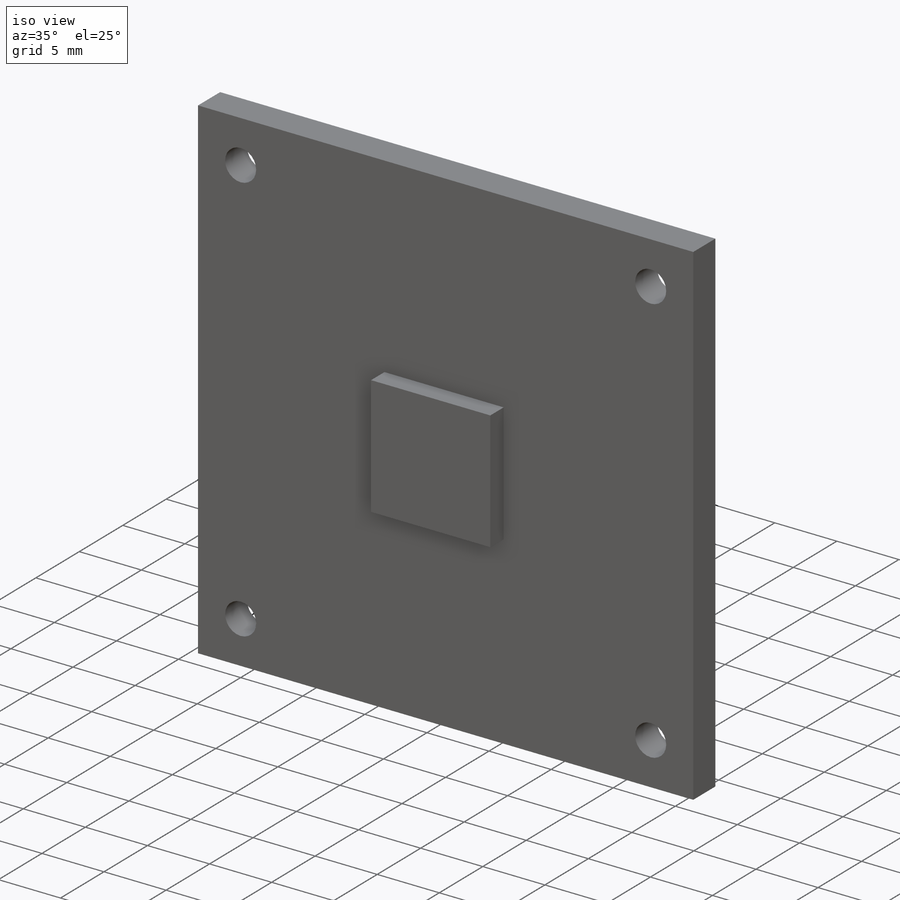
[diagram: iso view]
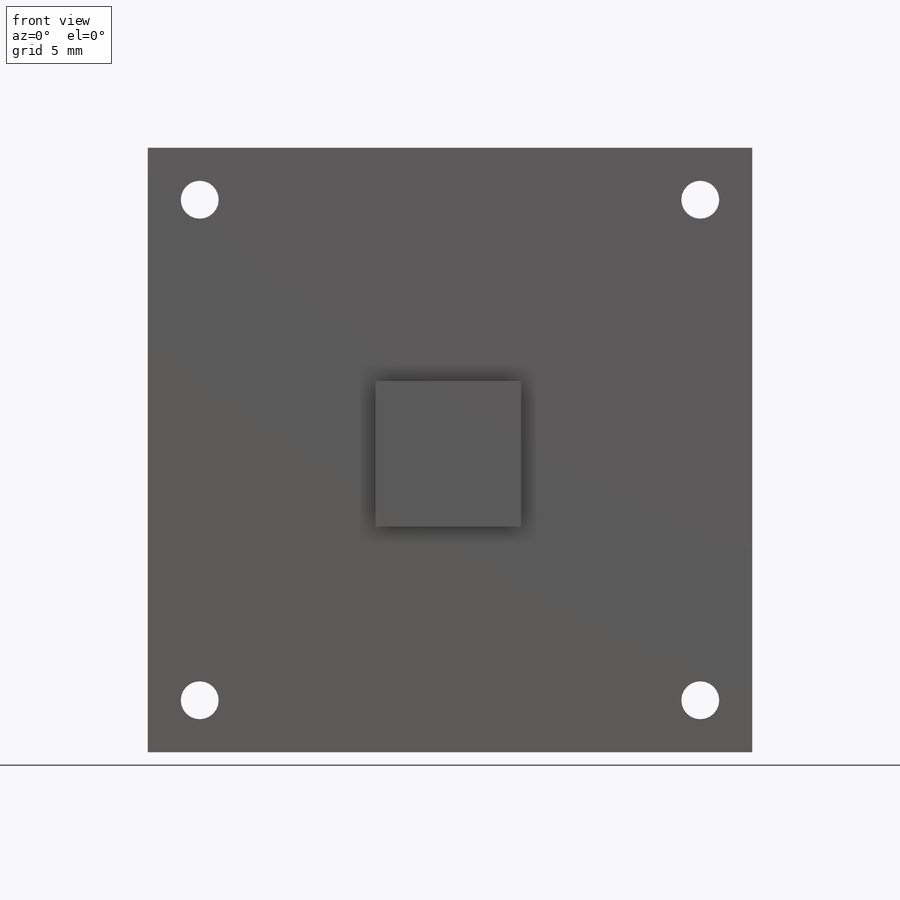
[diagram: front view]
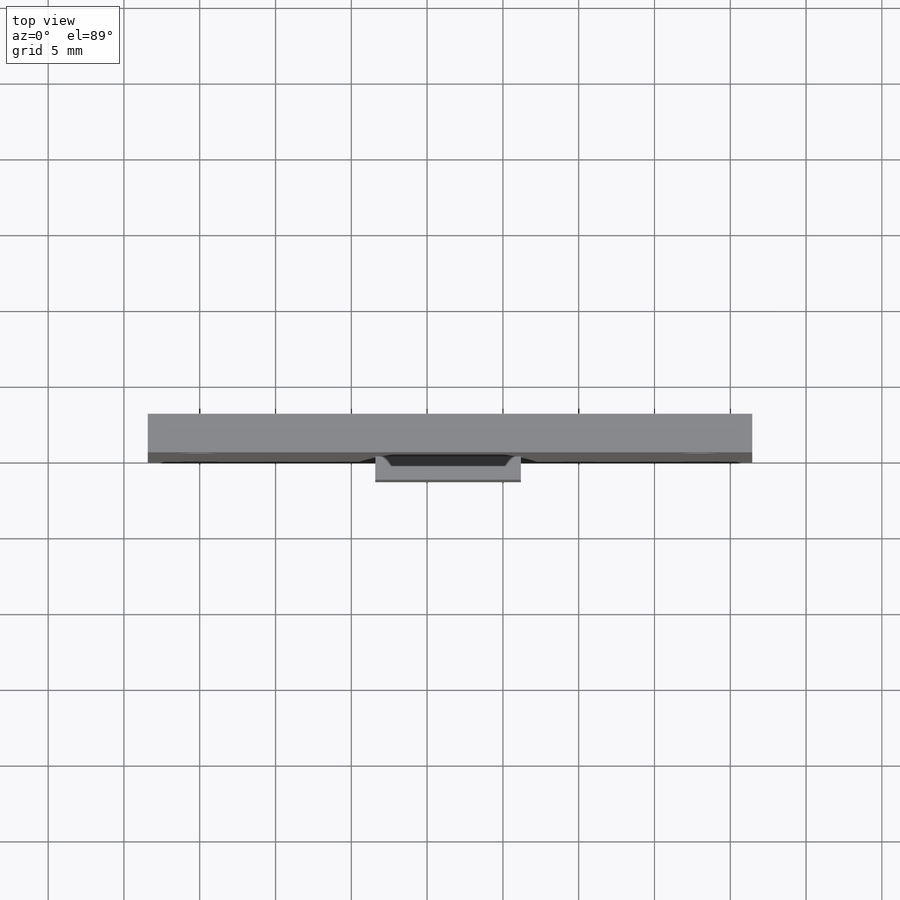
[diagram: top view]
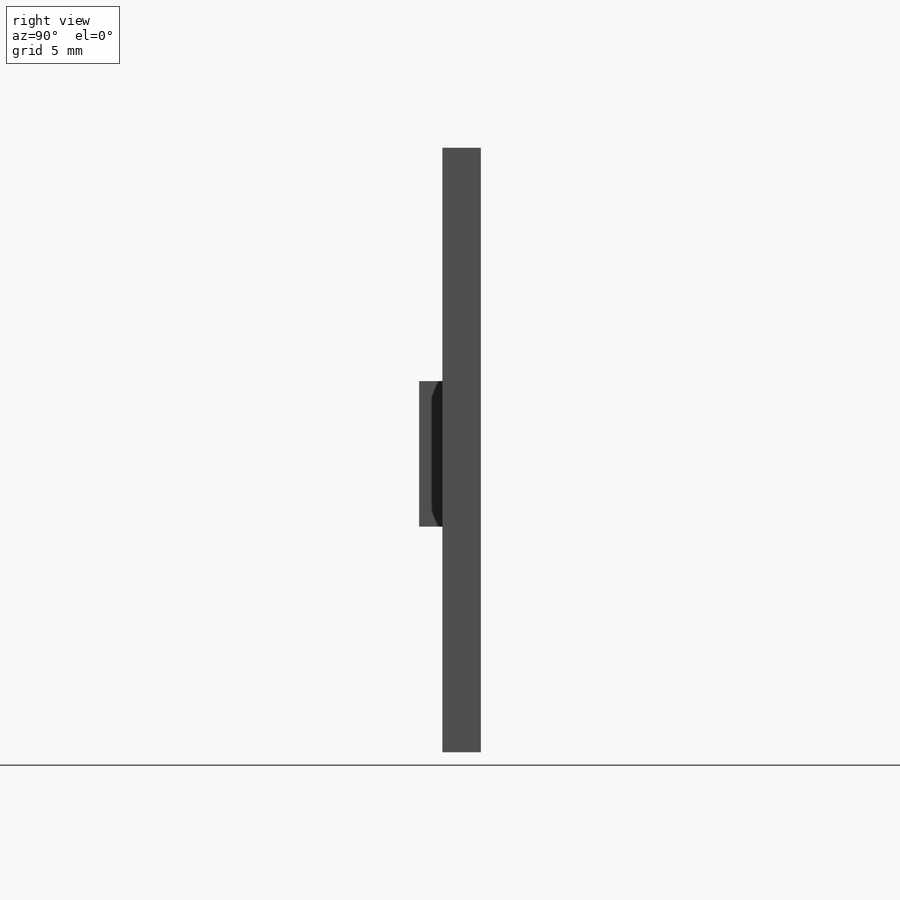
[diagram: right view]
SOLIDWORKS PART (.sldprt)
format: sldprt  version: not decoded by parser v0  size: 2,001,920 bytes
history: native  units: mm
features: sketch x5, thread x4, plane x3, extrude x2, material x1, hole x1 (+10 scaffold rows collapsed)
feature tree (26):
  scaffold x10  (default folders/planes/origin — collapsed)
  material  "Materiale <non specificato>"
  plane  "Piano frontale"
  plane  "Piano superiore"
  plane  "Piano destro"
  sketch  "Model"  dims[D1=39.878mm D2=33.02mm]
  sketch  "Schizzo2"  dims[D1=~39.87805mm D2=~39.87805mm]
  extrude  "Estrusione-Estrusione1"  Depth=2.54mm
  hole  "Foro filettato M3x0.5-1"  Diameter=2.5mm Depth=2.54mm
  sketch  "Schizzo4"
  sketch  "Schizzo3"  dims[hole-wizard template sketch: 60 standard entries collapsed; hole parameters kept: c18.Thru Tap Drill Depth=2.54mm]
  thread  "Filettatura del foro1"  Diameter=3mm  [1 undecoded]
  thread  "Filettatura del foro2"  Diameter=3mm  [1 undecoded]
  thread  "Filettatura del foro3"  Diameter=3mm  [1 undecoded]
  thread  "Filettatura del foro4"  Diameter=3mm  [1 undecoded]
  sketch  "Schizzo5"  dims[D1=~9.579318mm D2=~9.609137mm]
  extrude  "Estrusione-Estrusione2"  Depth=1.54mm
decode coverage: 11 of 12 modeling features carry decoded parameters
note: ~ marks probable driven/reference dimensions
note: 4 parameter values undecoded
note: suppression state not decoded; provenance and decode notes live in map.json
